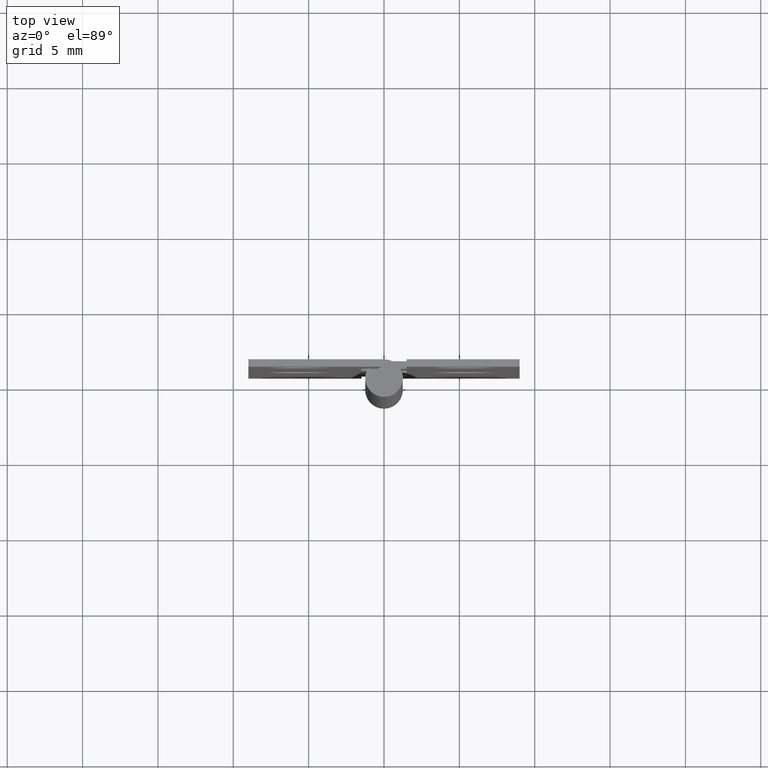
[diagram: clean part render]
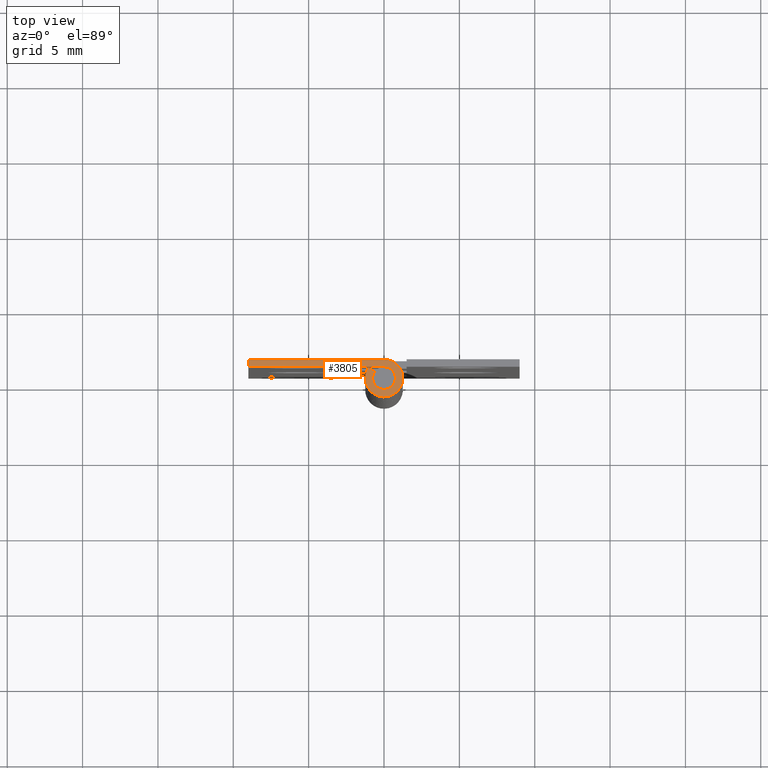
[diagram: same view with one face highlighted and labeled with its STEP entity id]
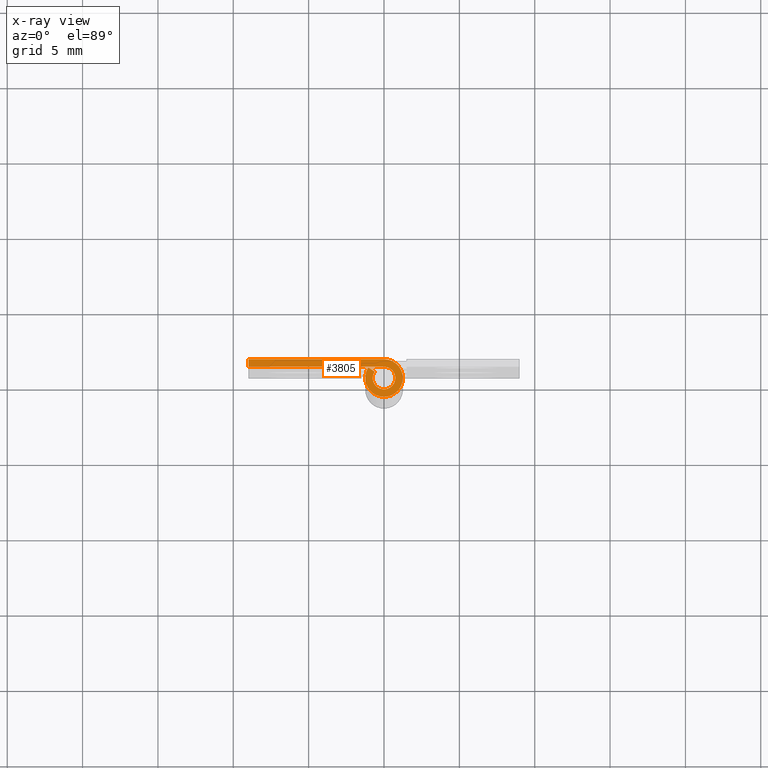
[diagram: x-ray of the same camera — body ghosted, the highlighted face saturated]
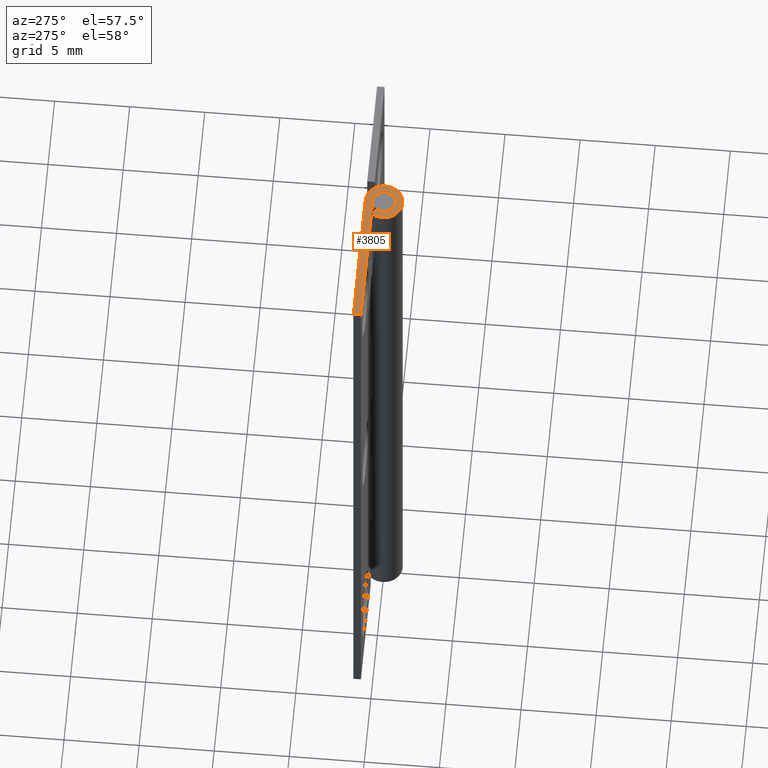
[diagram: same view with one face highlighted and labeled with its STEP entity id]
A machine part, top view. The second image highlights one B-rep face of the part: STEP entity #3805.
The next image is the same camera in x-ray: the body ghosted, the highlighted face saturated — about 0% of this face is hidden behind the body in this view.
A second angle (auxiliary view) of the same face is appended — the face is thin or edge-on in the first view.
In plain terms, the highlighted face is a freeform B-spline surface patch.
Its self-contained STEP definition (entity closure, byte-faithful):
#3728=CARTESIAN_POINT('',(-9.511973423062221,-1.373691454931124,45.0));
#3729=CARTESIAN_POINT('',(1.761692275121542,-1.373691454931124,45.0));
#3730=CARTESIAN_POINT('',(-9.511973423062221,1.374818756801179,45.0));
#3731=CARTESIAN_POINT('',(1.761692275121542,1.374818756801179,45.0));
#3732=B_SPLINE_SURFACE_WITH_KNOTS('',1,1,((#3728,#3730),(#3729,#3731)),.UNSPECIFIED.,.F.,.F.,.U.,(2,2),(2,2),(0.0,11.273665698183761),(0.0,2.748510211732303),.UNSPECIFIED.);
#3733=CARTESIAN_POINT('',(0.0,0.750000000000000,45.0));
#3734=VERTEX_POINT('',#3733);
#3735=CARTESIAN_POINT('',(-0.621369455316238,0.420000000000000,45.0));
#3736=VERTEX_POINT('',#3735);
#3737=CARTESIAN_POINT('',(0.0,0.750000000000000,45.0));
#3738=CARTESIAN_POINT('',(0.586111262182081,0.750000000000000,45.000000000000007));
#3739=CARTESIAN_POINT('',(0.727765947517106,0.181264242570148,45.0));
#3740=CARTESIAN_POINT('',(0.869420632852130,-0.387471514859705,45.000000000000007));
#3741=CARTESIAN_POINT('',(0.351781181986757,-0.662382064974589,45.0));
#3742=CARTESIAN_POINT('',(-0.165858268878616,-0.937292615089472,45.000000000000007));
#3743=CARTESIAN_POINT('',(-0.557725015508411,-0.501440731369265,45.0));
#3744=CARTESIAN_POINT('',(-0.949591762138205,-0.065588847649057,45.000000000000007));
#3745=CARTESIAN_POINT('',(-0.621369455316239,0.420000000000001,45.0));
#3753=(BOUNDED_CURVE()B_SPLINE_CURVE(2,(#3737,#3738,#3739,#3740,#3741,#3742,#3743,#3744,#3745),.UNSPECIFIED.,.F.,.U.)B_SPLINE_CURVE_WITH_KNOTS((3,2,2,2,3),(0.0,0.250000000000000,0.500000000000000,0.750000000000000,1.0),.UNSPECIFIED.)CURVE()GEOMETRIC_REPRESENTATION_ITEM()RATIONAL_B_SPLINE_CURVE((1.0,0.787935802194632,1.0,0.787935802194632,1.0,0.787935802194632,1.0,0.787935802194632,1.0))REPRESENTATION_ITEM(''));
#3754=EDGE_CURVE('',#3734,#3736,#3753,.T.);
#3755=ORIENTED_EDGE('',*,*,#3754,.T.);
#3756=CARTESIAN_POINT('',(-1.035615758860396,0.700000000000000,45.0));
#3757=VERTEX_POINT('',#3756);
#3758=CARTESIAN_POINT('',(-1.035615758860396,0.700000000000000,45.0));
#3759=CARTESIAN_POINT('',(-0.621369455316238,0.420000000000000,45.0));
#3760=QUASI_UNIFORM_CURVE('',1,(#3758,#3759),.UNSPECIFIED.,.F.,.U.);
#3761=EDGE_CURVE('',#3757,#3736,#3760,.T.);
#3762=ORIENTED_EDGE('',*,*,#3761,.F.);
#3763=CARTESIAN_POINT('',(0.0,1.250000000000000,45.0));
#3764=VERTEX_POINT('',#3763);
#3765=CARTESIAN_POINT('',(0.0,1.250000000000000,45.0));
#3766=CARTESIAN_POINT('',(0.976852103636802,1.250000000000000,45.000000000000007));
#3767=CARTESIAN_POINT('',(1.212943245861843,0.302107070950246,45.0));
#3768=CARTESIAN_POINT('',(1.449034388086884,-0.645785858099508,45.000000000000007));
#3769=CARTESIAN_POINT('',(0.586301969977928,-1.103970108290981,45.0));
#3770=CARTESIAN_POINT('',(-0.276430448131027,-1.562154358482455,45.000000000000007));
#3771=CARTESIAN_POINT('',(-0.929541692514018,-0.835734552282107,45.0));
#3772=CARTESIAN_POINT('',(-1.582652936897008,-0.109314746081762,45.000000000000007));
#3773=CARTESIAN_POINT('',(-1.035615758860398,0.700000000000001,45.0));
#3781=(BOUNDED_CURVE()B_SPLINE_CURVE(2,(#3765,#3766,#3767,#3768,#3769,#3770,#3771,#3772,#3773),.UNSPECIFIED.,.F.,.U.)B_SPLINE_CURVE_WITH_KNOTS((3,2,2,2,3),(0.0,0.250000000000000,0.500000000000000,0.750000000000000,1.0),.UNSPECIFIED.)CURVE()GEOMETRIC_REPRESENTATION_ITEM()RATIONAL_B_SPLINE_CURVE((1.0,0.787935802194632,1.0,0.787935802194632,1.0,0.787935802194632,1.0,0.787935802194632,1.0))REPRESENTATION_ITEM(''));
#3782=EDGE_CURVE('',#3764,#3757,#3781,.T.);
#3783=ORIENTED_EDGE('',*,*,#3782,.F.);
#3784=CARTESIAN_POINT('',(-9.0,1.250000000000000,45.0));
#3785=VERTEX_POINT('',#3784);
#3786=CARTESIAN_POINT('',(-9.0,1.250000000000000,45.0));
#3787=CARTESIAN_POINT('',(0.0,1.250000000000000,45.0));
#3788=QUASI_UNIFORM_CURVE('',1,(#3786,#3787),.UNSPECIFIED.,.F.,.U.);
#3789=EDGE_CURVE('',#3785,#3764,#3788,.T.);
#3790=ORIENTED_EDGE('',*,*,#3789,.F.);
#3791=CARTESIAN_POINT('',(-9.0,0.750000000000000,45.0));
#3792=VERTEX_POINT('',#3791);
#3793=CARTESIAN_POINT('',(-9.0,0.750000000000000,45.0));
#3794=CARTESIAN_POINT('',(-9.0,1.250000000000000,45.0));
#3795=QUASI_UNIFORM_CURVE('',1,(#3793,#3794),.UNSPECIFIED.,.F.,.U.);
#3796=EDGE_CURVE('',#3792,#3785,#3795,.T.);
#3797=ORIENTED_EDGE('',*,*,#3796,.F.);
#3798=CARTESIAN_POINT('',(0.0,0.750000000000000,45.0));
#3799=CARTESIAN_POINT('',(-9.0,0.750000000000000,45.0));
#3800=QUASI_UNIFORM_CURVE('',1,(#3798,#3799),.UNSPECIFIED.,.F.,.U.);
#3801=EDGE_CURVE('',#3734,#3792,#3800,.T.);
#3802=ORIENTED_EDGE('',*,*,#3801,.F.);
#3803=EDGE_LOOP('',(#3755,#3762,#3783,#3790,#3797,#3802));
#3804=FACE_OUTER_BOUND('',#3803,.T.);
#3805=ADVANCED_FACE('',(#3804),#3732,.T.);